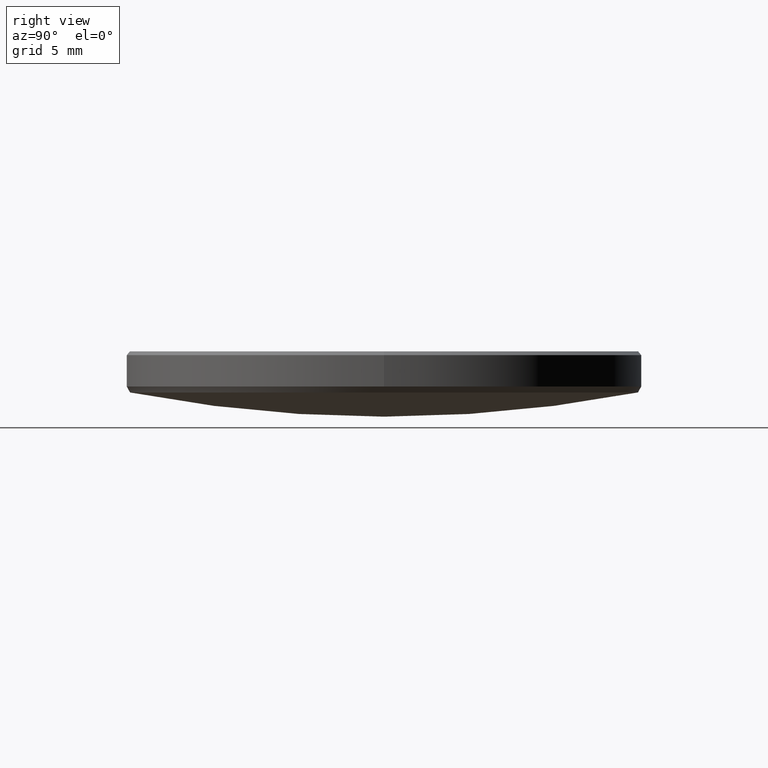
[diagram: clean part render]
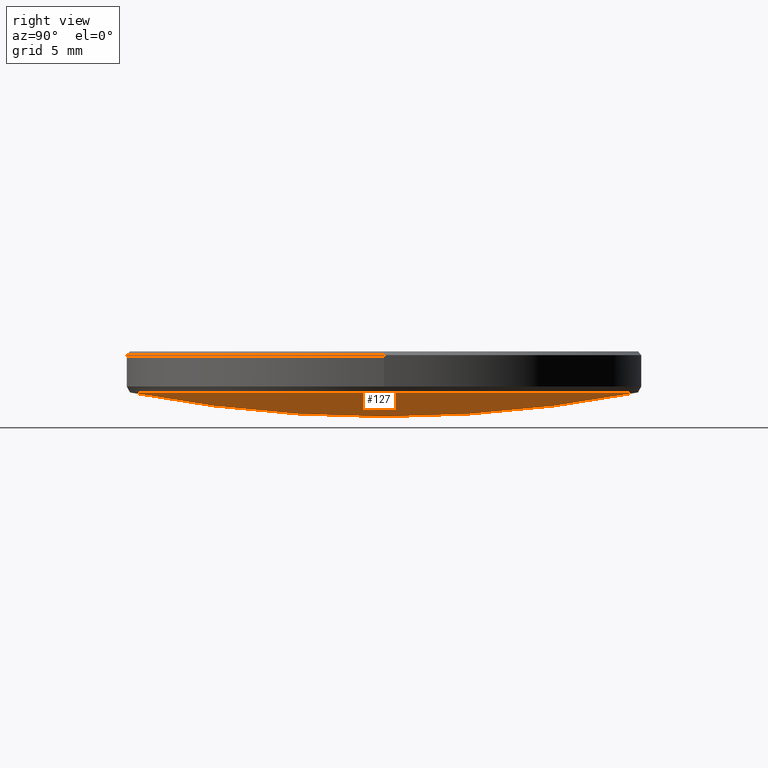
[diagram: same view with one face highlighted and labeled with its STEP entity id]
A machine part, right view. The second image highlights one B-rep face of the part: STEP entity #127.
In plain terms, the highlighted spherical surface has radius 66.15 mm.
Its self-contained STEP definition (entity closure, byte-faithful):
#23 = AXIS2_PLACEMENT_3D ( 'NONE', #50, #232, #286 ) ;
#24 = CARTESIAN_POINT ( 'NONE',  ( 0.000000000000000000, 0.000000000000000000, 68.91943083545942272 ) ) ;
#31 = ORIENTED_EDGE ( 'NONE', *, *, #113, .T. ) ;
#39 = DIRECTION ( 'NONE',  ( -1.224646799147352961E-16, -1.000000000000000000, 0.000000000000000000 ) ) ;
#50 = CARTESIAN_POINT ( 'NONE',  ( 0.000000000000000000, 0.000000000000000000, 68.91943083545942272 ) ) ;
#52 = CARTESIAN_POINT ( 'NONE',  ( -1.531293274863309419E-15, -12.50395849586554675, 3.961956115965656444 ) ) ;
#73 = AXIS2_PLACEMENT_3D ( 'NONE', #114, #248, #39 ) ;
#75 = DIRECTION ( 'NONE',  ( 0.000000000000000000, 0.000000000000000000, -1.000000000000000000 ) ) ;
#89 = EDGE_CURVE ( 'NONE', #200, #325, #301, .T. ) ;
#101 = EDGE_CURVE ( 'NONE', #326, #149, #213, .T. ) ;
#103 = EDGE_CURVE ( 'NONE', #325, #149, #111, .T. ) ;
#111 = CIRCLE ( 'NONE', #256, 12.50395849586555030 ) ;
#113 = EDGE_CURVE ( 'NONE', #326, #200, #139, .T. ) ;
#114 = CARTESIAN_POINT ( 'NONE',  ( 0.000000000000000000, 0.000000000000000000, 68.91943083545942272 ) ) ;
#120 = DIRECTION ( 'NONE',  ( 0.000000000000000000, 0.000000000000000000, -1.000000000000000000 ) ) ;
#127 = ADVANCED_FACE ( 'NONE', ( #180 ), #156, .T. ) ;
#131 = AXIS2_PLACEMENT_3D ( 'NONE', #297, #142, #254 ) ;
#139 = CIRCLE ( 'NONE', #155, 66.15000000000000568 ) ;
#142 = DIRECTION ( 'NONE',  ( 0.000000000000000000, 0.000000000000000000, -1.000000000000000000 ) ) ;
#149 = VERTEX_POINT ( 'NONE', #52 ) ;
#155 = AXIS2_PLACEMENT_3D ( 'NONE', #24, #307, #75 ) ;
#156 = SPHERICAL_SURFACE ( 'NONE', #23, 66.15000000000000568 ) ;
#164 = CARTESIAN_POINT ( 'NONE',  ( 0.000000000000000000, 4.050519288179870232E-15, 2.769430835459427254 ) ) ;
#180 = FACE_OUTER_BOUND ( 'NONE', #194, .T. ) ;
#194 = EDGE_LOOP ( 'NONE', ( #217, #31, #317, #302 ) ) ;
#200 = VERTEX_POINT ( 'NONE', #263 ) ;
#213 = CIRCLE ( 'NONE', #73, 66.15000000000000568 ) ;
#217 = ORIENTED_EDGE ( 'NONE', *, *, #101, .F. ) ;
#232 = DIRECTION ( 'NONE',  ( -1.000000000000000000, 0.000000000000000000, 0.000000000000000000 ) ) ;
#248 = DIRECTION ( 'NONE',  ( -1.000000000000000000, 1.224646799147353207E-16, 0.000000000000000000 ) ) ;
#249 = CARTESIAN_POINT ( 'NONE',  ( 0.000000000000000000, 0.000000000000000000, 3.961956115965656444 ) ) ;
#254 = DIRECTION ( 'NONE',  ( 1.000000000000000000, 0.000000000000000000, 0.000000000000000000 ) ) ;
#256 = AXIS2_PLACEMENT_3D ( 'NONE', #249, #120, #324 ) ;
#263 = CARTESIAN_POINT ( 'NONE',  ( 0.000000000000000000, 12.50395849586554675, 3.961956115965656444 ) ) ;
#286 = DIRECTION ( 'NONE',  ( 0.000000000000000000, 1.000000000000000000, 0.000000000000000000 ) ) ;
#297 = CARTESIAN_POINT ( 'NONE',  ( 0.000000000000000000, 0.000000000000000000, 3.961956115965656444 ) ) ;
#301 = CIRCLE ( 'NONE', #131, 12.50395849586555030 ) ;
#302 = ORIENTED_EDGE ( 'NONE', *, *, #103, .T. ) ;
#307 = DIRECTION ( 'NONE',  ( 1.000000000000000000, -0.000000000000000000, 0.000000000000000000 ) ) ;
#317 = ORIENTED_EDGE ( 'NONE', *, *, #89, .T. ) ;
#320 = CARTESIAN_POINT ( 'NONE',  ( 12.50395849586555030, 0.000000000000000000, 3.961956115965656444 ) ) ;
#324 = DIRECTION ( 'NONE',  ( 1.000000000000000000, 0.000000000000000000, 0.000000000000000000 ) ) ;
#325 = VERTEX_POINT ( 'NONE', #320 ) ;
#326 = VERTEX_POINT ( 'NONE', #164 ) ;